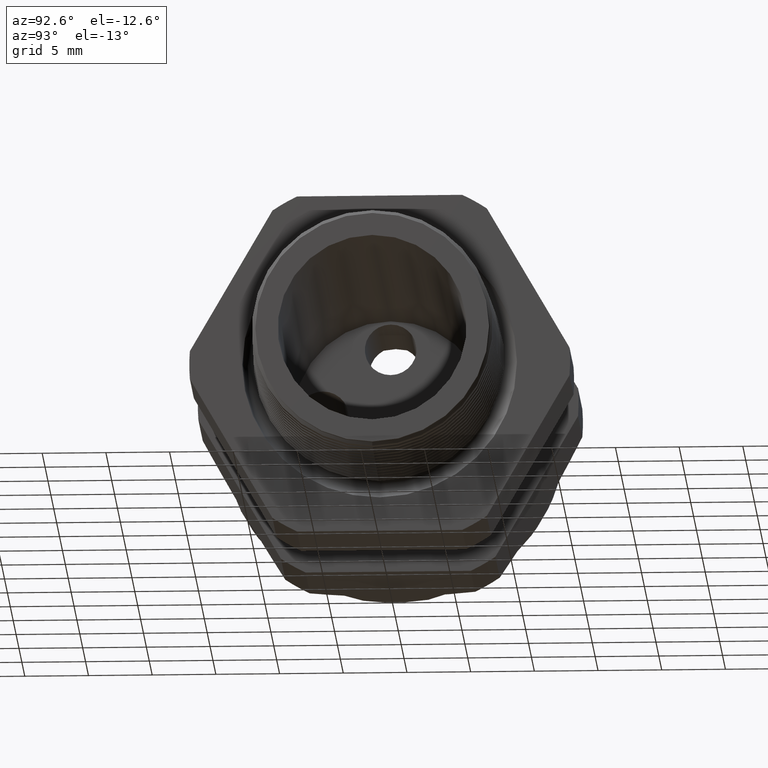
[diagram: clean part render]
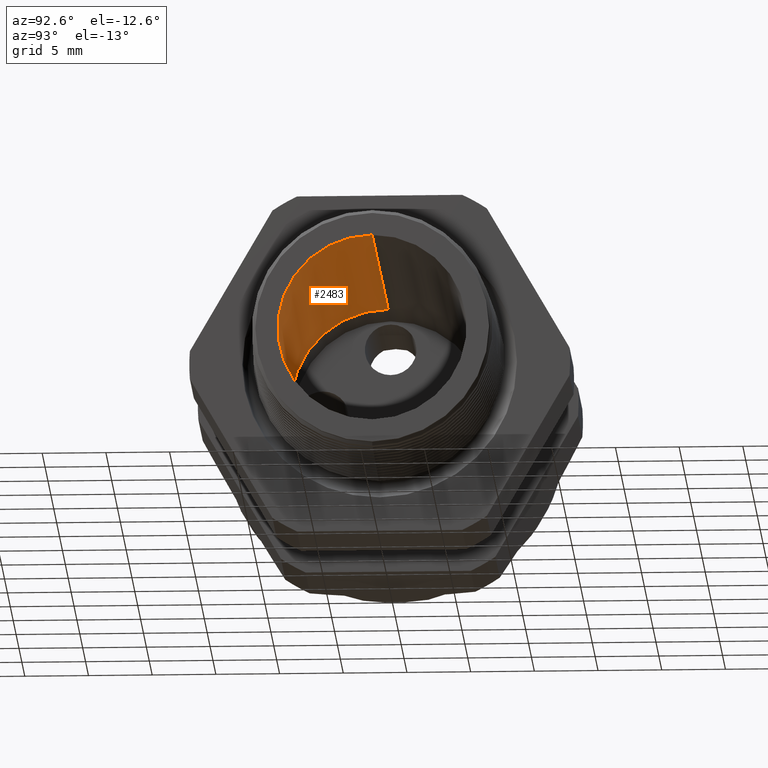
[diagram: same view with one face highlighted and labeled with its STEP entity id]
A machine part, auxiliary view. The second image highlights one B-rep face of the part: STEP entity #2483.
In plain terms, the highlighted conical surface has half-angle 0.424 deg.
Its self-contained STEP definition (entity closure, byte-faithful):
#2471 = ORIENTED_EDGE ( 'NONE', *, *, #2474, .T. ) ;
#2472 = VERTEX_POINT ( 'NONE', #4148 ) ;
#2473 = EDGE_LOOP ( 'NONE', ( #2471, #2476, #2481, #2501 ) ) ;
#2474 = EDGE_CURVE ( 'NONE', #2477, #2480, #4147, .T. ) ;
#2475 = EDGE_CURVE ( 'NONE', #2472, #2482, #4142, .T. ) ;
#2476 = ORIENTED_EDGE ( 'NONE', *, *, #2479, .T. ) ;
#2477 = VERTEX_POINT ( 'NONE', #4137 ) ;
#2479 = EDGE_CURVE ( 'NONE', #2480, #2482, #4136, .T. ) ;
#2480 = VERTEX_POINT ( 'NONE', #4132 ) ;
#2481 = ORIENTED_EDGE ( 'NONE', *, *, #2475, .F. ) ;
#2482 = VERTEX_POINT ( 'NONE', #4131 ) ;
#2483 = ADVANCED_FACE ( 'NONE', ( #4130 ), #4128, .F. ) ;
#2500 = EDGE_CURVE ( 'NONE', #2477, #2472, #4159, .T. ) ;
#2501 = ORIENTED_EDGE ( 'NONE', *, *, #2500, .F. ) ;
#4125 = DIRECTION ( 'NONE',  ( 0.0000000000000000000, 0.0000000000000000000, 1.000000000000000000 ) ) ;
#4126 = DIRECTION ( 'NONE',  ( -1.000000000000000000, 0.0000000000000000000, 0.0000000000000000000 ) ) ;
#4127 = AXIS2_PLACEMENT_3D ( 'NONE', #4129, #4126, #4125 ) ;
#4128 = CONICAL_SURFACE ( 'NONE', #4127, 0.2999999999999999900, 0.007405648909184165400 ) ;
#4129 = CARTESIAN_POINT ( 'NONE',  ( -0.8903149606299211000, 0.0000000000000000000, 0.0000000000000000000 ) ) ;
#4130 = FACE_OUTER_BOUND ( 'NONE', #2473, .T. ) ;
#4131 = CARTESIAN_POINT ( 'NONE',  ( -0.8903149606299211000, 0.0000000000000000000, -0.2999999999999999900 ) ) ;
#4132 = CARTESIAN_POINT ( 'NONE',  ( 0.2000000000000000400, 3.624497503128140000E-017, -0.2919253625864463600 ) ) ;
#4133 = DIRECTION ( 'NONE',  ( -0.9999725783074426800, 9.069221333532471100E-019, -0.007405581217251224400 ) ) ;
#4134 = VECTOR ( 'NONE', #4133, 39.37007874015748900 ) ;
#4135 = CARTESIAN_POINT ( 'NONE',  ( -0.8903149606299211000, 3.673940397442058900E-017, -0.2999999999999999900 ) ) ;
#4136 = LINE ( 'NONE', #4135, #4134 ) ;
#4137 = CARTESIAN_POINT ( 'NONE',  ( 0.2000000000000000400, 0.0000000000000000000, 0.2919253625864463600 ) ) ;
#4138 = DIRECTION ( 'NONE',  ( 0.0000000000000000000, 0.0000000000000000000, -1.000000000000000000 ) ) ;
#4139 = DIRECTION ( 'NONE',  ( 1.000000000000000000, 0.0000000000000000000, 0.0000000000000000000 ) ) ;
#4140 = CARTESIAN_POINT ( 'NONE',  ( -0.8903149606299211000, 0.0000000000000000000, 0.0000000000000000000 ) ) ;
#4141 = AXIS2_PLACEMENT_3D ( 'NONE', #4140, #4139, #4138 ) ;
#4142 = CIRCLE ( 'NONE', #4141, 0.2999999999999999900 ) ;
#4143 = DIRECTION ( 'NONE',  ( 0.0000000000000000000, 0.0000000000000000000, -1.000000000000000000 ) ) ;
#4144 = DIRECTION ( 'NONE',  ( 1.000000000000000000, 0.0000000000000000000, 0.0000000000000000000 ) ) ;
#4145 = CARTESIAN_POINT ( 'NONE',  ( 0.2000000000000000400, 0.0000000000000000000, 0.0000000000000000000 ) ) ;
#4146 = AXIS2_PLACEMENT_3D ( 'NONE', #4145, #4144, #4143 ) ;
#4147 = CIRCLE ( 'NONE', #4146, 0.2919253625864463600 ) ;
#4148 = CARTESIAN_POINT ( 'NONE',  ( -0.8903149606299211000, 3.673940397442058900E-017, 0.2999999999999999900 ) ) ;
#4156 = DIRECTION ( 'NONE',  ( -0.9999725783074426800, 0.0000000000000000000, 0.007405581217251224400 ) ) ;
#4157 = VECTOR ( 'NONE', #4156, 39.37007874015748900 ) ;
#4158 = CARTESIAN_POINT ( 'NONE',  ( -0.8903149606299211000, 0.0000000000000000000, 0.2999999999999999900 ) ) ;
#4159 = LINE ( 'NONE', #4158, #4157 ) ;